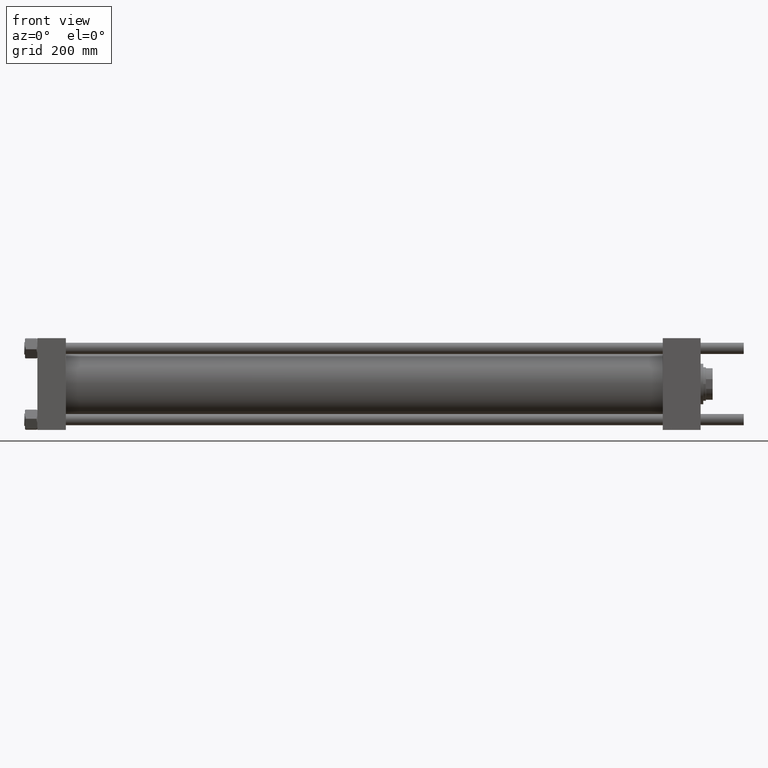
[diagram: clean part render]
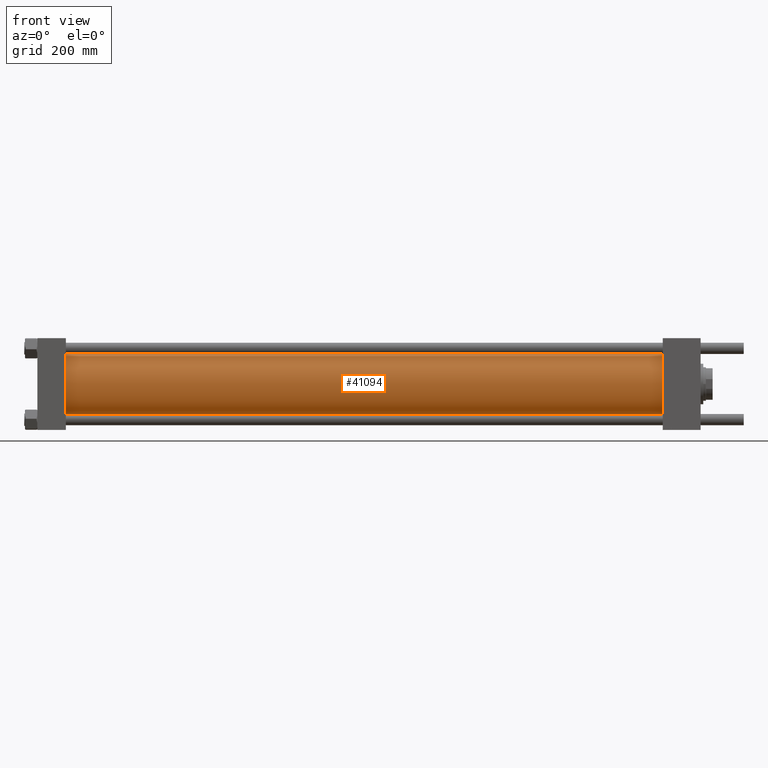
[diagram: same view with one face highlighted and labeled with its STEP entity id]
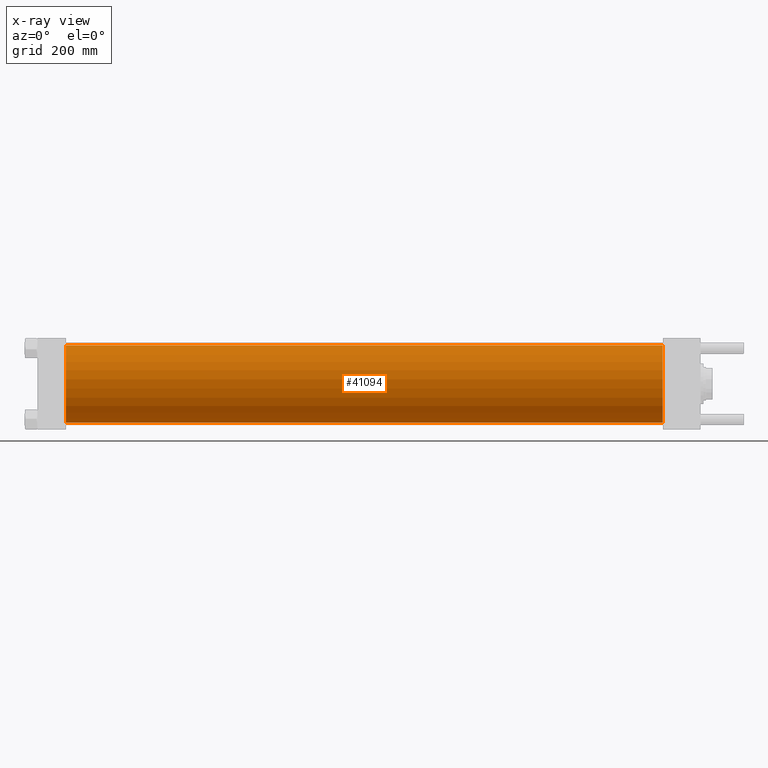
[diagram: x-ray of the same camera — body ghosted, the highlighted face saturated]
A machine part, front view. The second image highlights one B-rep face of the part: STEP entity #41094.
The next image is the same camera in x-ray: the body ghosted, the highlighted face saturated — about 0% of this face is hidden behind the body in this view.
In plain terms, the highlighted cylindrical surface (partial cylindrical patch) has radius 103 mm, axis along (-1, -0, -0).
Its self-contained STEP definition (entity closure, byte-faithful):
#1121 = DIRECTION ( 'NONE',  ( 1.000000000000000000, 0.000000000000000000, 0.000000000000000000 ) ) ;
#2179 = VERTEX_POINT ( 'NONE', #33719 ) ;
#2653 = VECTOR ( 'NONE', #50138, 1000.000000000000000 ) ;
#3029 = CARTESIAN_POINT ( 'NONE',  ( 76.00000000000007105, -2.602085213965210642E-15, 103.0000000000000000 ) ) ;
#3629 = VECTOR ( 'NONE', #7792, 1000.000000000000000 ) ;
#4187 = AXIS2_PLACEMENT_3D ( 'NONE', #18506, #14173, #44872 ) ;
#5792 = CYLINDRICAL_SURFACE ( 'NONE', #4187, 103.0000000000000000 ) ;
#5829 = ORIENTED_EDGE ( 'NONE', *, *, #29977, .F. ) ;
#6030 = AXIS2_PLACEMENT_3D ( 'NONE', #32069, #1121, #35561 ) ;
#7128 = EDGE_CURVE ( 'NONE', #50517, #34500, #15659, .T. ) ;
#7792 = DIRECTION ( 'NONE',  ( -1.000000000000000000, -0.000000000000000000, -0.000000000000000000 ) ) ;
#8169 = EDGE_CURVE ( 'NONE', #22022, #2179, #16174, .T. ) ;
#14173 = DIRECTION ( 'NONE',  ( -1.000000000000000000, -0.000000000000000000, -0.000000000000000000 ) ) ;
#15373 = CARTESIAN_POINT ( 'NONE',  ( 1668.000000000000227, -2.602085213965210642E-15, 103.0000000000000000 ) ) ;
#15659 = LINE ( 'NONE', #15373, #2653 ) ;
#16174 = LINE ( 'NONE', #47161, #3629 ) ;
#16633 = EDGE_LOOP ( 'NONE', ( #32532, #5829, #53724, #54982 ) ) ;
#17053 = CIRCLE ( 'NONE', #6030, 103.0000000000000000 ) ;
#18506 = CARTESIAN_POINT ( 'NONE',  ( 1668.000000000000227, -2.602085213965210642E-15, 0.000000000000000000 ) ) ;
#22022 = VERTEX_POINT ( 'NONE', #57222 ) ;
#24391 = CARTESIAN_POINT ( 'NONE',  ( 76.00000000000007105, -2.602085213965210642E-15, 0.000000000000000000 ) ) ;
#26489 = CARTESIAN_POINT ( 'NONE',  ( 1668.000000000000227, -2.602085213965210642E-15, 103.0000000000000000 ) ) ;
#28460 = DIRECTION ( 'NONE',  ( 1.000000000000000000, -0.000000000000000000, -0.000000000000000000 ) ) ;
#28551 = AXIS2_PLACEMENT_3D ( 'NONE', #24391, #28460, #46972 ) ;
#29977 = EDGE_CURVE ( 'NONE', #50517, #22022, #17053, .T. ) ;
#32069 = CARTESIAN_POINT ( 'NONE',  ( 1668.000000000000227, -2.602085213965210642E-15, 0.000000000000000000 ) ) ;
#32532 = ORIENTED_EDGE ( 'NONE', *, *, #8169, .F. ) ;
#33719 = CARTESIAN_POINT ( 'NONE',  ( 76.00000000000007105, 1.001177681725252697E-14, -103.0000000000000000 ) ) ;
#34500 = VERTEX_POINT ( 'NONE', #3029 ) ;
#35561 = DIRECTION ( 'NONE',  ( 0.000000000000000000, 0.000000000000000000, -1.000000000000000000 ) ) ;
#35949 = CIRCLE ( 'NONE', #28551, 103.0000000000000000 ) ;
#41094 = ADVANCED_FACE ( 'NONE', ( #45435 ), #5792, .T. ) ;
#44872 = DIRECTION ( 'NONE',  ( 0.000000000000000000, 0.000000000000000000, 1.000000000000000000 ) ) ;
#45435 = FACE_OUTER_BOUND ( 'NONE', #16633, .T. ) ;
#46972 = DIRECTION ( 'NONE',  ( 0.000000000000000000, 0.000000000000000000, 1.000000000000000000 ) ) ;
#47161 = CARTESIAN_POINT ( 'NONE',  ( 1668.000000000000227, 1.001177681725252697E-14, -103.0000000000000000 ) ) ;
#50138 = DIRECTION ( 'NONE',  ( -1.000000000000000000, -0.000000000000000000, -0.000000000000000000 ) ) ;
#50517 = VERTEX_POINT ( 'NONE', #26489 ) ;
#53724 = ORIENTED_EDGE ( 'NONE', *, *, #7128, .T. ) ;
#54982 = ORIENTED_EDGE ( 'NONE', *, *, #55133, .T. ) ;
#55133 = EDGE_CURVE ( 'NONE', #34500, #2179, #35949, .T. ) ;
#57222 = CARTESIAN_POINT ( 'NONE',  ( 1668.000000000000227, 1.001177681725252697E-14, -103.0000000000000000 ) ) ;